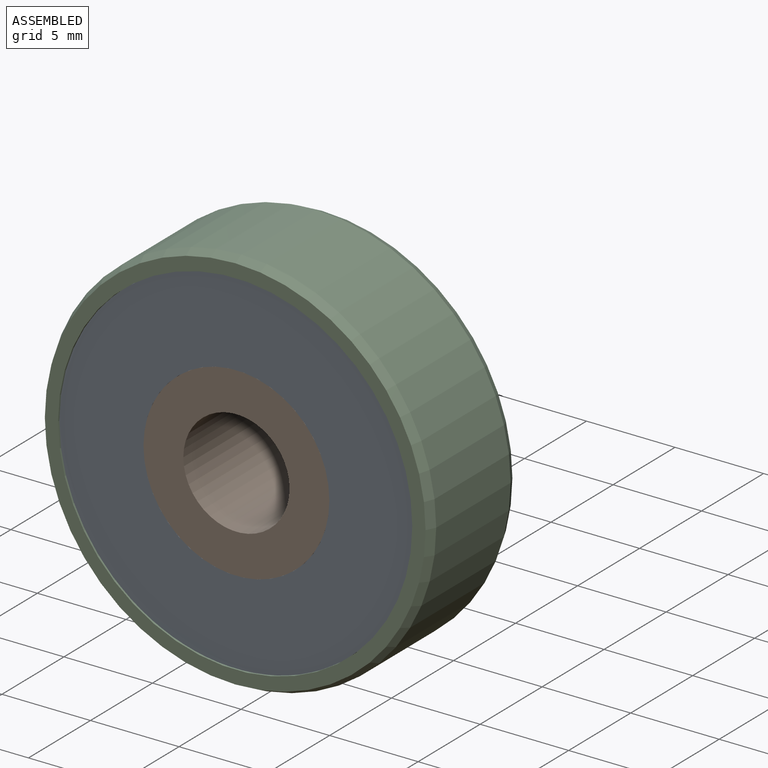
[diagram: assembled view]
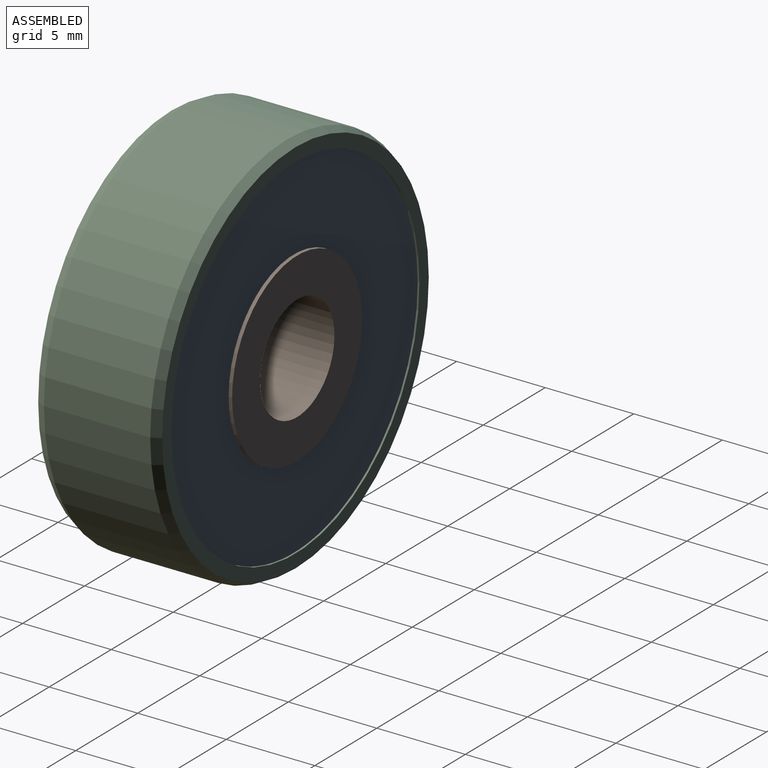
[diagram: assembled view, second angle]
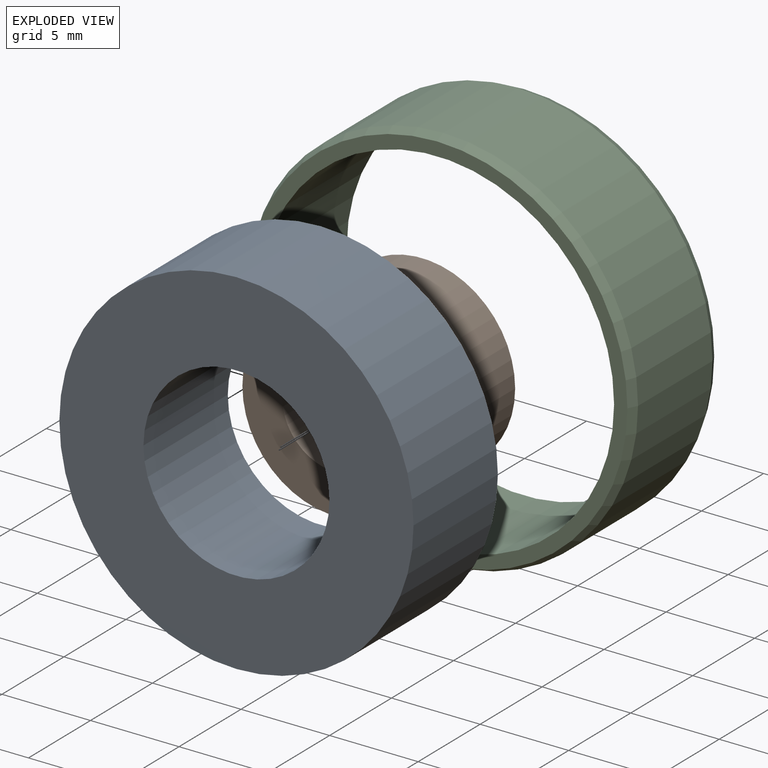
[diagram: exploded view]
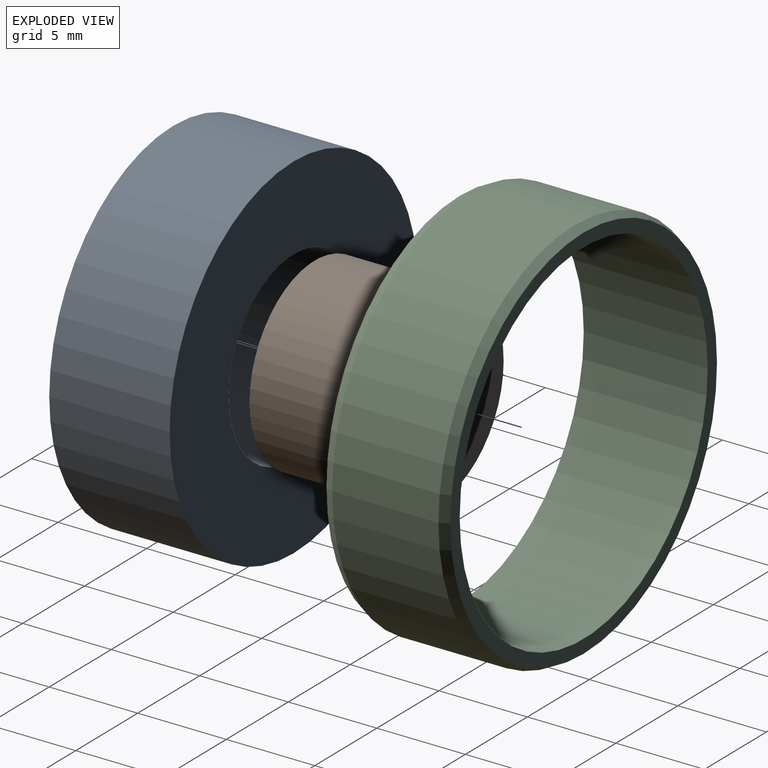
[diagram: exploded view, second angle]
ASSEMBLY  parts=3 mates=2
PART A: 4 faces, bbox 20x6.8x20 mm
  f0: cylinder r=5.25mm len=10.5mm, axis (0,1,0), area 224.3mm2, adj f2,f3
  f1: cylinder r=10mm len=20mm, axis (0,1,0), area 427.3mm2, adj f2,f3
  f2: plane 20x20mm, normal (0,-1,0), area 227.6mm2, adj f0,f1
  f3: plane 20x20mm, normal (0,1,0), area 227.6mm2, adj f0,f1
PART B: 4 faces, bbox 10.5x7x10.5 mm
  f0: cylinder r=3mm len=7mm, axis (0,-1,0), area 131.9mm2, adj f2,f3
  f1: cylinder r=5.25mm len=10.5mm, axis (0,-1,0), area 230.9mm2, adj f2,f3
  f2: plane 10.5x10.5mm, normal (0,1,0), area 58.3mm2, adj f0,f1
  f3: plane 10.5x10.5mm, normal (0,-1,0), area 58.3mm2, adj f0,f1
PART C: 6 faces, bbox 22x7x22 mm
  f0: cylinder r=10mm len=20mm, axis (0,-1,0), area 439.8mm2, adj f2,f3
  f1: cylinder r=11mm len=22mm, axis (0,-1,0), area 414.7mm2, adj f4,f5
  f2: plane 21.5x21.5mm, normal (0,1,0), area 48.9mm2, adj f0,f4
  f3: plane 21.5x21.5mm, normal (0,-1,0), area 48.9mm2, adj f0,f5
  f4: cone r=11mm half-angle=26.6deg, axis (0,-1,0), area 38.2mm2, adj f1,f2
  f5: cone r=10.75mm half-angle=26.6deg, axis (0,1,0), area 38.2mm2, adj f1,f3
PLACE A t=(-10.88,-0.71,15)mm
PLACE B t=(-10.88,-0.61,15)mm
PLACE C t=(-10.88,-0.71,15)mm
MATE fastened A.f0 <-> C.f0  axis (0,1,0) through (-10.88,-0.71,15)mm
MATE revolute B.f0 <-> A.f0  axis (0,-1,0) through (-10.88,-4.11,15)mm
